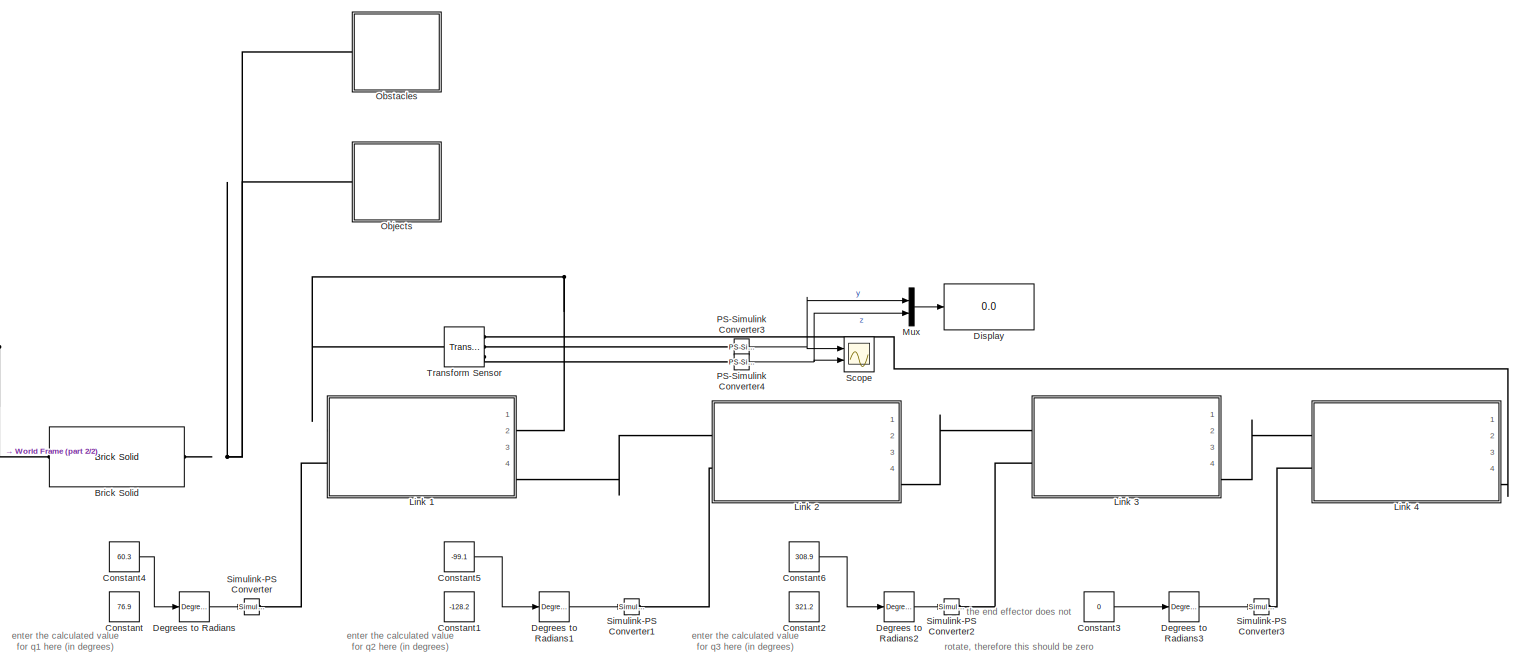
[diagram: root canvas - part 1/2, most of the canvas]
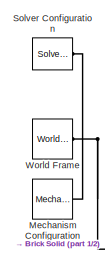
[diagram: root canvas - part 2/2, middle left region]
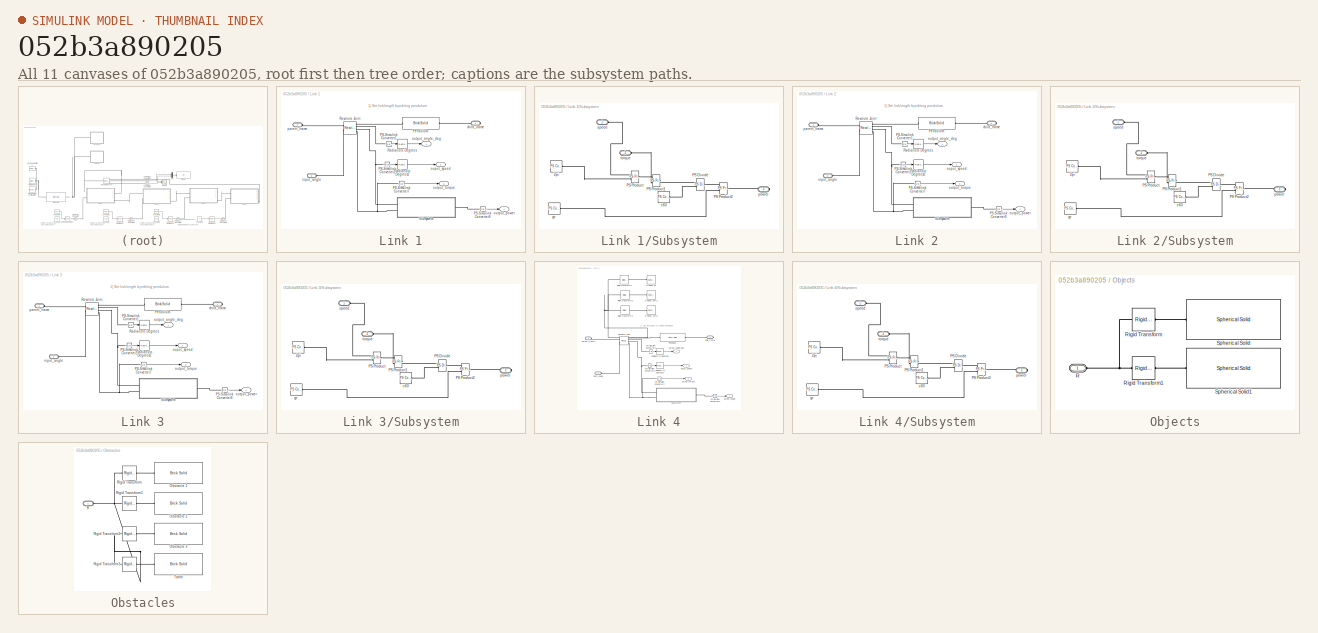
[diagram: thumbnail index - all 11 canvases of the model, root first then tree order]
MODEL slx_052b3a890205
KIND model
CONFIG AbsTol = 1e-3
CONFIG EnableMultiTasking = on
CONFIG FixedStep = auto
CONFIG MaxStep = 0.01
CONFIG MinStep = auto
CONFIG RelTol = 1e-3
CONFIG SampleTimeConstraint = Unconstrained
CONFIG SolverName = ode15s
CONFIG StartTime = 0.0
CONFIG StopTime = 10.0
BLOCK [Reference] Brick Solid  REF=sm_lib/Body Elements/Brick Solid
  NameLocation = top
  Ports = [0, 0, 0, 0, 0, 1, 1]
  SourceBlock = sm_lib/Body Elements/Brick Solid
  SourceProductBaseCode = MS
  SourceType = Brick Solid
BLOCK [Constant] Constant
  Commented = on
  Value = 76.9
BLOCK [Constant] Constant1
  Commented = on
  Value = -128.2
BLOCK [Constant] Constant2
  Commented = on
  Value = 321.2
BLOCK [Constant] Constant3
  Value = 0
BLOCK [Constant] Constant4
  Value = 60.3
BLOCK [Constant] Constant5
  Value = -99.1
BLOCK [Constant] Constant6
  Value = 308.9
BLOCK [Reference] Degrees to Radians  REF=simulink_extras/Transformations/Degrees to
Radians
  Ports = [1, 1]
  SourceBlock = simulink_extras/Transformations/Degrees to\nRadians
  SourceProductBaseCode = SL
  SourceType = DegreesToRadians
BLOCK [Reference] Degrees to Radians1  REF=simulink_extras/Transformations/Degrees to
Radians
  Ports = [1, 1]
  SourceBlock = simulink_extras/Transformations/Degrees to\nRadians
  SourceProductBaseCode = SL
  SourceType = DegreesToRadians
BLOCK [Reference] Degrees to Radians2  REF=simulink_extras/Transformations/Degrees to
Radians
  Ports = [1, 1]
  SourceBlock = simulink_extras/Transformations/Degrees to\nRadians
  SourceProductBaseCode = SL
  SourceType = DegreesToRadians
BLOCK [Reference] Degrees to Radians3  REF=simulink_extras/Transformations/Degrees to
Radians
  Ports = [1, 1]
  SourceBlock = simulink_extras/Transformations/Degrees to\nRadians
  SourceProductBaseCode = SL
  SourceType = DegreesToRadians
BLOCK [Display] Display
  Decimation = 1
  Ports = [1]
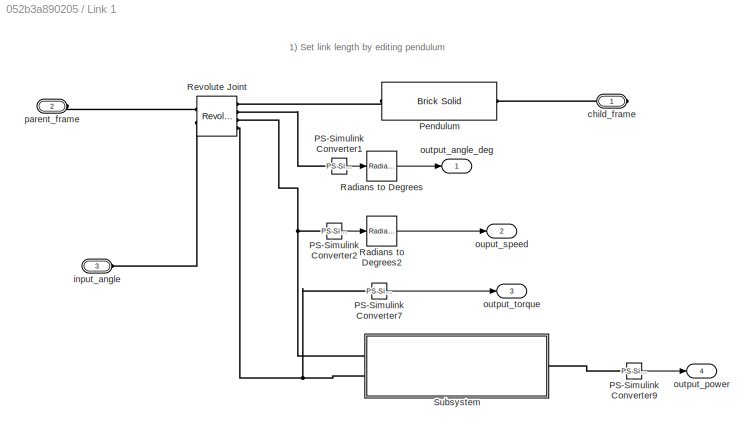
BLOCK [SubSystem] Link 1
  Ports = [0, 4, 0, 0, 0, 2, 1]
  RequestExecContextInheritance = off
BLOCK [Reference] Link 1/PS-Simulink Converter1  REF=nesl_utility/PS-Simulink
Converter
  Ports = [0, 1, 0, 0, 0, 1]
  SourceBlock = nesl_utility/PS-Simulink\nConverter
  SourceProductBaseCode = SS
  SourceType = PS-Simulink\nConverter
BLOCK [Reference] Link 1/PS-Simulink Converter2  REF=nesl_utility/PS-Simulink
Converter
  Ports = [0, 1, 0, 0, 0, 1]
  SourceBlock = nesl_utility/PS-Simulink\nConverter
  SourceProductBaseCode = SS
  SourceType = PS-Simulink\nConverter
BLOCK [Reference] Link 1/PS-Simulink Converter7  REF=nesl_utility/PS-Simulink
Converter
  Ports = [0, 1, 0, 0, 0, 1]
  SourceBlock = nesl_utility/PS-Simulink\nConverter
  SourceProductBaseCode = SS
  SourceType = PS-Simulink\nConverter
BLOCK [Reference] Link 1/PS-Simulink Converter9  REF=nesl_utility/PS-Simulink
Converter
  Ports = [0, 1, 0, 0, 0, 1]
  SourceBlock = nesl_utility/PS-Simulink\nConverter
  SourceProductBaseCode = SS
  SourceType = PS-Simulink\nConverter
BLOCK [Reference] Link 1/Pendulum  REF=sm_lib/Body Elements/Brick Solid
  Ports = [0, 0, 0, 0, 0, 1, 1]
  SourceBlock = sm_lib/Body Elements/Brick Solid
  SourceProductBaseCode = MS
  SourceType = Brick Solid
BLOCK [Reference] Link 1/Radians to Degrees  REF=simulink_extras/Transformations/Radians
to Degrees
  Ports = [1, 1]
  SourceBlock = simulink_extras/Transformations/Radians\nto Degrees
  SourceProductBaseCode = SL
  SourceType = RadiansToDegrees
BLOCK [Reference] Link 1/Radians to Degrees2  REF=simulink_extras/Transformations/Radians
to Degrees
  Ports = [1, 1]
  SourceBlock = simulink_extras/Transformations/Radians\nto Degrees
  SourceProductBaseCode = SL
  SourceType = RadiansToDegrees
BLOCK [Reference] Link 1/Revolute Joint  REF=sm_lib/Joints/Revolute Joint
  Ports = [0, 0, 0, 0, 0, 2, 4]
  SourceBlock = sm_lib/Joints/Revolute Joint
  SourceProductBaseCode = MS
  SourceType = Revolute Joint
BLOCK [SubSystem] Link 1/Subsystem
  Ports = [0, 0, 0, 0, 0, 2, 1]
  RequestExecContextInheritance = off
BLOCK [Reference] Link 1/Subsystem/2pi  REF=fl_lib/Physical Signals/Sources/PS Constant
  Ports = [0, 0, 0, 0, 0, 0, 1]
  SourceBlock = fl_lib/Physical Signals/Sources/PS Constant
  SourceProductBaseCode = SS
  SourceType = PS Constant
BLOCK [Reference] Link 1/Subsystem/PS Divide  REF=fl_lib/Physical Signals/Functions/PS Divide
  Ports = [0, 0, 0, 0, 0, 2, 1]
  SourceBlock = fl_lib/Physical Signals/Functions/PS Divide
  SourceProductBaseCode = SS
  SourceType = PS Divide
BLOCK [Reference] Link 1/Subsystem/PS Product  REF=fl_lib/Physical Signals/Functions/PS Product
  Ports = [0, 0, 0, 0, 0, 2, 1]
  SourceBlock = fl_lib/Physical Signals/Functions/PS Product
  SourceProductBaseCode = SS
  SourceType = PS Product
BLOCK [Reference] Link 1/Subsystem/PS Product1  REF=fl_lib/Physical Signals/Functions/PS Product
  Ports = [0, 0, 0, 0, 0, 2, 1]
  SourceBlock = fl_lib/Physical Signals/Functions/PS Product
  SourceProductBaseCode = SS
  SourceType = PS Product
BLOCK [Reference] Link 1/Subsystem/PS Product2  REF=fl_lib/Physical Signals/Functions/PS Product
  Ports = [0, 0, 0, 0, 0, 2, 1]
  SourceBlock = fl_lib/Physical Signals/Functions/PS Product
  SourceProductBaseCode = SS
  SourceType = PS Product
BLOCK [Reference] Link 1/Subsystem/c60  REF=fl_lib/Physical Signals/Sources/PS Constant
  Ports = [0, 0, 0, 0, 0, 0, 1]
  SourceBlock = fl_lib/Physical Signals/Sources/PS Constant
  SourceProductBaseCode = SS
  SourceType = PS Constant
BLOCK [Reference] Link 1/Subsystem/gr  REF=fl_lib/Physical Signals/Sources/PS Constant
  Ports = [0, 0, 0, 0, 0, 0, 1]
  SourceBlock = fl_lib/Physical Signals/Sources/PS Constant
  SourceProductBaseCode = SS
  SourceType = PS Constant
BLOCK [PMIOPort] Link 1/Subsystem/power
  Port = 3
  Side = Right
BLOCK [PMIOPort] Link 1/Subsystem/speed
  Side = Left
BLOCK [PMIOPort] Link 1/Subsystem/torque
  Port = 2
  Side = Left
BLOCK [PMIOPort] Link 1/child_frame
  Side = Right
BLOCK [PMIOPort] Link 1/input_angle
  Port = 3
  Side = Left
BLOCK [Outport] Link 1/ouput_speed
  Port = 2
BLOCK [Outport] Link 1/output_angle_deg
BLOCK [Outport] Link 1/output_power
  Port = 4
BLOCK [Outport] Link 1/output_torque
  Port = 3
BLOCK [PMIOPort] Link 1/parent_frame
  Port = 2
  Side = Left
BLOCK [SubSystem] Link 2
  Ports = [0, 4, 0, 0, 0, 2, 1]
  RequestExecContextInheritance = off
BLOCK [Reference] Link 2/PS-Simulink Converter1  REF=nesl_utility/PS-Simulink
Converter
  Ports = [0, 1, 0, 0, 0, 1]
  SourceBlock = nesl_utility/PS-Simulink\nConverter
  SourceProductBaseCode = SS
  SourceType = PS-Simulink\nConverter
BLOCK [Reference] Link 2/PS-Simulink Converter2  REF=nesl_utility/PS-Simulink
Converter
  Ports = [0, 1, 0, 0, 0, 1]
  SourceBlock = nesl_utility/PS-Simulink\nConverter
  SourceProductBaseCode = SS
  SourceType = PS-Simulink\nConverter
BLOCK [Reference] Link 2/PS-Simulink Converter7  REF=nesl_utility/PS-Simulink
Converter
  Ports = [0, 1, 0, 0, 0, 1]
  SourceBlock = nesl_utility/PS-Simulink\nConverter
  SourceProductBaseCode = SS
  SourceType = PS-Simulink\nConverter
BLOCK [Reference] Link 2/PS-Simulink Converter9  REF=nesl_utility/PS-Simulink
Converter
  Ports = [0, 1, 0, 0, 0, 1]
  SourceBlock = nesl_utility/PS-Simulink\nConverter
  SourceProductBaseCode = SS
  SourceType = PS-Simulink\nConverter
BLOCK [Reference] Link 2/Pendulum  REF=sm_lib/Body Elements/Brick Solid
  Ports = [0, 0, 0, 0, 0, 1, 1]
  SourceBlock = sm_lib/Body Elements/Brick Solid
  SourceProductBaseCode = MS
  SourceType = Brick Solid
BLOCK [Reference] Link 2/Radians to Degrees  REF=simulink_extras/Transformations/Radians
to Degrees
  Ports = [1, 1]
  SourceBlock = simulink_extras/Transformations/Radians\nto Degrees
  SourceProductBaseCode = SL
  SourceType = RadiansToDegrees
BLOCK [Reference] Link 2/Radians to Degrees2  REF=simulink_extras/Transformations/Radians
to Degrees
  Ports = [1, 1]
  SourceBlock = simulink_extras/Transformations/Radians\nto Degrees
  SourceProductBaseCode = SL
  SourceType = RadiansToDegrees
BLOCK [Reference] Link 2/Revolute Joint  REF=sm_lib/Joints/Revolute Joint
  Ports = [0, 0, 0, 0, 0, 2, 4]
  SourceBlock = sm_lib/Joints/Revolute Joint
  SourceProductBaseCode = MS
  SourceType = Revolute Joint
BLOCK [SubSystem] Link 2/Subsystem
  Ports = [0, 0, 0, 0, 0, 2, 1]
  RequestExecContextInheritance = off
BLOCK [Reference] Link 2/Subsystem/2pi  REF=fl_lib/Physical Signals/Sources/PS Constant
  Ports = [0, 0, 0, 0, 0, 0, 1]
  SourceBlock = fl_lib/Physical Signals/Sources/PS Constant
  SourceProductBaseCode = SS
  SourceType = PS Constant
BLOCK [Reference] Link 2/Subsystem/PS Divide  REF=fl_lib/Physical Signals/Functions/PS Divide
  Ports = [0, 0, 0, 0, 0, 2, 1]
  SourceBlock = fl_lib/Physical Signals/Functions/PS Divide
  SourceProductBaseCode = SS
  SourceType = PS Divide
BLOCK [Reference] Link 2/Subsystem/PS Product  REF=fl_lib/Physical Signals/Functions/PS Product
  Ports = [0, 0, 0, 0, 0, 2, 1]
  SourceBlock = fl_lib/Physical Signals/Functions/PS Product
  SourceProductBaseCode = SS
  SourceType = PS Product
BLOCK [Reference] Link 2/Subsystem/PS Product1  REF=fl_lib/Physical Signals/Functions/PS Product
  Ports = [0, 0, 0, 0, 0, 2, 1]
  SourceBlock = fl_lib/Physical Signals/Functions/PS Product
  SourceProductBaseCode = SS
  SourceType = PS Product
BLOCK [Reference] Link 2/Subsystem/PS Product2  REF=fl_lib/Physical Signals/Functions/PS Product
  Ports = [0, 0, 0, 0, 0, 2, 1]
  SourceBlock = fl_lib/Physical Signals/Functions/PS Product
  SourceProductBaseCode = SS
  SourceType = PS Product
BLOCK [Reference] Link 2/Subsystem/c60  REF=fl_lib/Physical Signals/Sources/PS Constant
  Ports = [0, 0, 0, 0, 0, 0, 1]
  SourceBlock = fl_lib/Physical Signals/Sources/PS Constant
  SourceProductBaseCode = SS
  SourceType = PS Constant
BLOCK [Reference] Link 2/Subsystem/gr  REF=fl_lib/Physical Signals/Sources/PS Constant
  Ports = [0, 0, 0, 0, 0, 0, 1]
  SourceBlock = fl_lib/Physical Signals/Sources/PS Constant
  SourceProductBaseCode = SS
  SourceType = PS Constant
BLOCK [PMIOPort] Link 2/Subsystem/power
  Port = 3
  Side = Right
BLOCK [PMIOPort] Link 2/Subsystem/speed
  Side = Left
BLOCK [PMIOPort] Link 2/Subsystem/torque
  Port = 2
  Side = Left
BLOCK [PMIOPort] Link 2/child_frame
  Side = Right
BLOCK [PMIOPort] Link 2/input_angle
  Port = 3
  Side = Left
BLOCK [Outport] Link 2/ouput_speed
  Port = 2
BLOCK [Outport] Link 2/output_angle_deg
BLOCK [Outport] Link 2/output_power
  Port = 4
BLOCK [Outport] Link 2/output_torque
  Port = 3
BLOCK [PMIOPort] Link 2/parent_frame
  Port = 2
  Side = Left
BLOCK [SubSystem] Link 3
  Ports = [0, 4, 0, 0, 0, 2, 1]
  RequestExecContextInheritance = off
BLOCK [Reference] Link 3/PS-Simulink Converter1  REF=nesl_utility/PS-Simulink
Converter
  Ports = [0, 1, 0, 0, 0, 1]
  SourceBlock = nesl_utility/PS-Simulink\nConverter
  SourceProductBaseCode = SS
  SourceType = PS-Simulink\nConverter
BLOCK [Reference] Link 3/PS-Simulink Converter2  REF=nesl_utility/PS-Simulink
Converter
  Ports = [0, 1, 0, 0, 0, 1]
  SourceBlock = nesl_utility/PS-Simulink\nConverter
  SourceProductBaseCode = SS
  SourceType = PS-Simulink\nConverter
BLOCK [Reference] Link 3/PS-Simulink Converter7  REF=nesl_utility/PS-Simulink
Converter
  Ports = [0, 1, 0, 0, 0, 1]
  SourceBlock = nesl_utility/PS-Simulink\nConverter
  SourceProductBaseCode = SS
  SourceType = PS-Simulink\nConverter
BLOCK [Reference] Link 3/PS-Simulink Converter9  REF=nesl_utility/PS-Simulink
Converter
  Ports = [0, 1, 0, 0, 0, 1]
  SourceBlock = nesl_utility/PS-Simulink\nConverter
  SourceProductBaseCode = SS
  SourceType = PS-Simulink\nConverter
BLOCK [Reference] Link 3/Pendulum  REF=sm_lib/Body Elements/Brick Solid
  Ports = [0, 0, 0, 0, 0, 1, 1]
  SourceBlock = sm_lib/Body Elements/Brick Solid
  SourceProductBaseCode = MS
  SourceType = Brick Solid
BLOCK [Reference] Link 3/Radians to Degrees  REF=simulink_extras/Transformations/Radians
to Degrees
  Ports = [1, 1]
  SourceBlock = simulink_extras/Transformations/Radians\nto Degrees
  SourceProductBaseCode = SL
  SourceType = RadiansToDegrees
BLOCK [Reference] Link 3/Radians to Degrees2  REF=simulink_extras/Transformations/Radians
to Degrees
  Ports = [1, 1]
  SourceBlock = simulink_extras/Transformations/Radians\nto Degrees
  SourceProductBaseCode = SL
  SourceType = RadiansToDegrees
BLOCK [Reference] Link 3/Revolute Joint  REF=sm_lib/Joints/Revolute Joint
  Ports = [0, 0, 0, 0, 0, 2, 4]
  SourceBlock = sm_lib/Joints/Revolute Joint
  SourceProductBaseCode = MS
  SourceType = Revolute Joint
BLOCK [SubSystem] Link 3/Subsystem
  Ports = [0, 0, 0, 0, 0, 2, 1]
  RequestExecContextInheritance = off
BLOCK [Reference] Link 3/Subsystem/2pi  REF=fl_lib/Physical Signals/Sources/PS Constant
  Ports = [0, 0, 0, 0, 0, 0, 1]
  SourceBlock = fl_lib/Physical Signals/Sources/PS Constant
  SourceProductBaseCode = SS
  SourceType = PS Constant
BLOCK [Reference] Link 3/Subsystem/PS Divide  REF=fl_lib/Physical Signals/Functions/PS Divide
  Ports = [0, 0, 0, 0, 0, 2, 1]
  SourceBlock = fl_lib/Physical Signals/Functions/PS Divide
  SourceProductBaseCode = SS
  SourceType = PS Divide
BLOCK [Reference] Link 3/Subsystem/PS Product  REF=fl_lib/Physical Signals/Functions/PS Product
  Ports = [0, 0, 0, 0, 0, 2, 1]
  SourceBlock = fl_lib/Physical Signals/Functions/PS Product
  SourceProductBaseCode = SS
  SourceType = PS Product
BLOCK [Reference] Link 3/Subsystem/PS Product1  REF=fl_lib/Physical Signals/Functions/PS Product
  Ports = [0, 0, 0, 0, 0, 2, 1]
  SourceBlock = fl_lib/Physical Signals/Functions/PS Product
  SourceProductBaseCode = SS
  SourceType = PS Product
BLOCK [Reference] Link 3/Subsystem/PS Product2  REF=fl_lib/Physical Signals/Functions/PS Product
  Ports = [0, 0, 0, 0, 0, 2, 1]
  SourceBlock = fl_lib/Physical Signals/Functions/PS Product
  SourceProductBaseCode = SS
  SourceType = PS Product
BLOCK [Reference] Link 3/Subsystem/c60  REF=fl_lib/Physical Signals/Sources/PS Constant
  Ports = [0, 0, 0, 0, 0, 0, 1]
  SourceBlock = fl_lib/Physical Signals/Sources/PS Constant
  SourceProductBaseCode = SS
  SourceType = PS Constant
BLOCK [Reference] Link 3/Subsystem/gr  REF=fl_lib/Physical Signals/Sources/PS Constant
  Ports = [0, 0, 0, 0, 0, 0, 1]
  SourceBlock = fl_lib/Physical Signals/Sources/PS Constant
  SourceProductBaseCode = SS
  SourceType = PS Constant
BLOCK [PMIOPort] Link 3/Subsystem/power
  Port = 3
  Side = Right
BLOCK [PMIOPort] Link 3/Subsystem/speed
  Side = Left
BLOCK [PMIOPort] Link 3/Subsystem/torque
  Port = 2
  Side = Left
BLOCK [PMIOPort] Link 3/child_frame
  Side = Right
BLOCK [PMIOPort] Link 3/input_angle
  Port = 3
  Side = Left
BLOCK [Outport] Link 3/ouput_speed
  Port = 2
BLOCK [Outport] Link 3/output_angle_deg
BLOCK [Outport] Link 3/output_power
  Port = 4
BLOCK [Outport] Link 3/output_torque
  Port = 3
BLOCK [PMIOPort] Link 3/parent_frame
  Port = 2
  Side = Left
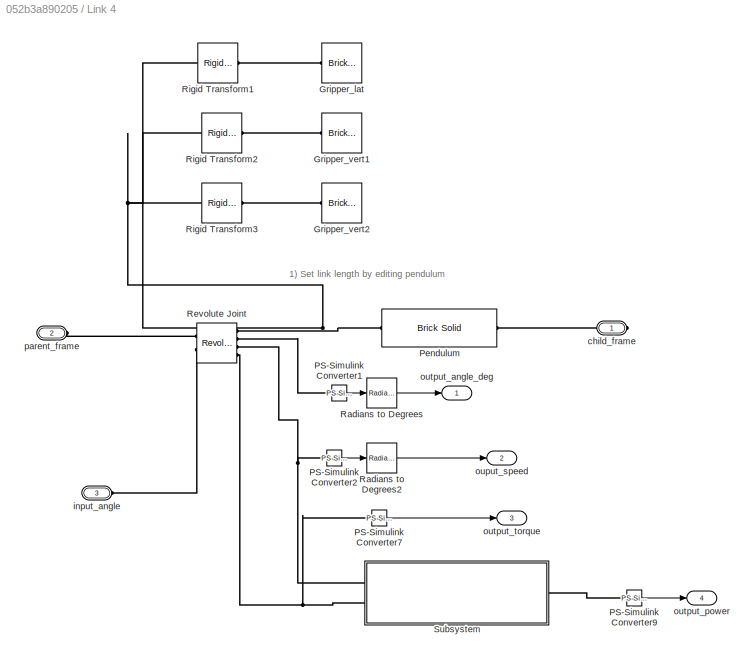
BLOCK [SubSystem] Link 4
  Ports = [0, 4, 0, 0, 0, 2, 1]
  RequestExecContextInheritance = off
BLOCK [Reference] Link 4/Gripper_lat  REF=sm_lib/Body Elements/Brick Solid
  NameLocation = top
  Ports = [0, 0, 0, 0, 0, 0, 1]
  SourceBlock = sm_lib/Body Elements/Brick Solid
  SourceProductBaseCode = MS
  SourceType = Brick Solid
BLOCK [Reference] Link 4/Gripper_vert1  REF=sm_lib/Body Elements/Brick Solid
  NameLocation = top
  Ports = [0, 0, 0, 0, 0, 0, 1]
  SourceBlock = sm_lib/Body Elements/Brick Solid
  SourceProductBaseCode = MS
  SourceType = Brick Solid
BLOCK [Reference] Link 4/Gripper_vert2  REF=sm_lib/Body Elements/Brick Solid
  NameLocation = top
  Ports = [0, 0, 0, 0, 0, 0, 1]
  SourceBlock = sm_lib/Body Elements/Brick Solid
  SourceProductBaseCode = MS
  SourceType = Brick Solid
BLOCK [Reference] Link 4/PS-Simulink Converter1  REF=nesl_utility/PS-Simulink
Converter
  Ports = [0, 1, 0, 0, 0, 1]
  SourceBlock = nesl_utility/PS-Simulink\nConverter
  SourceProductBaseCode = SS
  SourceType = PS-Simulink\nConverter
BLOCK [Reference] Link 4/PS-Simulink Converter2  REF=nesl_utility/PS-Simulink
Converter
  Ports = [0, 1, 0, 0, 0, 1]
  SourceBlock = nesl_utility/PS-Simulink\nConverter
  SourceProductBaseCode = SS
  SourceType = PS-Simulink\nConverter
BLOCK [Reference] Link 4/PS-Simulink Converter7  REF=nesl_utility/PS-Simulink
Converter
  Ports = [0, 1, 0, 0, 0, 1]
  SourceBlock = nesl_utility/PS-Simulink\nConverter
  SourceProductBaseCode = SS
  SourceType = PS-Simulink\nConverter
BLOCK [Reference] Link 4/PS-Simulink Converter9  REF=nesl_utility/PS-Simulink
Converter
  Ports = [0, 1, 0, 0, 0, 1]
  SourceBlock = nesl_utility/PS-Simulink\nConverter
  SourceProductBaseCode = SS
  SourceType = PS-Simulink\nConverter
BLOCK [Reference] Link 4/Pendulum  REF=sm_lib/Body Elements/Brick Solid
  Ports = [0, 0, 0, 0, 0, 1, 1]
  SourceBlock = sm_lib/Body Elements/Brick Solid
  SourceProductBaseCode = MS
  SourceType = Brick Solid
BLOCK [Reference] Link 4/Radians to Degrees  REF=simulink_extras/Transformations/Radians
to Degrees
  Ports = [1, 1]
  SourceBlock = simulink_extras/Transformations/Radians\nto Degrees
  SourceProductBaseCode = SL
  SourceType = RadiansToDegrees
BLOCK [Reference] Link 4/Radians to Degrees2  REF=simulink_extras/Transformations/Radians
to Degrees
  Ports = [1, 1]
  SourceBlock = simulink_extras/Transformations/Radians\nto Degrees
  SourceProductBaseCode = SL
  SourceType = RadiansToDegrees
BLOCK [Reference] Link 4/Revolute Joint  REF=sm_lib/Joints/Revolute Joint
  Ports = [0, 0, 0, 0, 0, 2, 4]
  SourceBlock = sm_lib/Joints/Revolute Joint
  SourceProductBaseCode = MS
  SourceType = Revolute Joint
BLOCK [Reference] Link 4/Rigid Transform1  REF=sm_lib/Frames and
Transforms/Rigid
Transform
  Ports = [0, 0, 0, 0, 0, 1, 1]
  SourceBlock = sm_lib/Frames and\nTransforms/Rigid\nTransform
  SourceProductBaseCode = MS
  SourceType = Rigid\nTransform
BLOCK [Reference] Link 4/Rigid Transform2  REF=sm_lib/Frames and
Transforms/Rigid
Transform
  Ports = [0, 0, 0, 0, 0, 1, 1]
  SourceBlock = sm_lib/Frames and\nTransforms/Rigid\nTransform
  SourceProductBaseCode = MS
  SourceType = Rigid\nTransform
BLOCK [Reference] Link 4/Rigid Transform3  REF=sm_lib/Frames and
Transforms/Rigid
Transform
  Ports = [0, 0, 0, 0, 0, 1, 1]
  SourceBlock = sm_lib/Frames and\nTransforms/Rigid\nTransform
  SourceProductBaseCode = MS
  SourceType = Rigid\nTransform
BLOCK [SubSystem] Link 4/Subsystem
  Ports = [0, 0, 0, 0, 0, 2, 1]
  RequestExecContextInheritance = off
BLOCK [Reference] Link 4/Subsystem/2pi  REF=fl_lib/Physical Signals/Sources/PS Constant
  Ports = [0, 0, 0, 0, 0, 0, 1]
  SourceBlock = fl_lib/Physical Signals/Sources/PS Constant
  SourceProductBaseCode = SS
  SourceType = PS Constant
BLOCK [Reference] Link 4/Subsystem/PS Divide  REF=fl_lib/Physical Signals/Functions/PS Divide
  Ports = [0, 0, 0, 0, 0, 2, 1]
  SourceBlock = fl_lib/Physical Signals/Functions/PS Divide
  SourceProductBaseCode = SS
  SourceType = PS Divide
BLOCK [Reference] Link 4/Subsystem/PS Product  REF=fl_lib/Physical Signals/Functions/PS Product
  Ports = [0, 0, 0, 0, 0, 2, 1]
  SourceBlock = fl_lib/Physical Signals/Functions/PS Product
  SourceProductBaseCode = SS
  SourceType = PS Product
BLOCK [Reference] Link 4/Subsystem/PS Product1  REF=fl_lib/Physical Signals/Functions/PS Product
  Ports = [0, 0, 0, 0, 0, 2, 1]
  SourceBlock = fl_lib/Physical Signals/Functions/PS Product
  SourceProductBaseCode = SS
  SourceType = PS Product
BLOCK [Reference] Link 4/Subsystem/PS Product2  REF=fl_lib/Physical Signals/Functions/PS Product
  Ports = [0, 0, 0, 0, 0, 2, 1]
  SourceBlock = fl_lib/Physical Signals/Functions/PS Product
  SourceProductBaseCode = SS
  SourceType = PS Product
BLOCK [Reference] Link 4/Subsystem/c60  REF=fl_lib/Physical Signals/Sources/PS Constant
  Ports = [0, 0, 0, 0, 0, 0, 1]
  SourceBlock = fl_lib/Physical Signals/Sources/PS Constant
  SourceProductBaseCode = SS
  SourceType = PS Constant
BLOCK [Reference] Link 4/Subsystem/gr  REF=fl_lib/Physical Signals/Sources/PS Constant
  Ports = [0, 0, 0, 0, 0, 0, 1]
  SourceBlock = fl_lib/Physical Signals/Sources/PS Constant
  SourceProductBaseCode = SS
  SourceType = PS Constant
BLOCK [PMIOPort] Link 4/Subsystem/power
  Port = 3
  Side = Right
BLOCK [PMIOPort] Link 4/Subsystem/speed
  Side = Left
BLOCK [PMIOPort] Link 4/Subsystem/torque
  Port = 2
  Side = Left
BLOCK [PMIOPort] Link 4/child_frame
  Side = Right
BLOCK [PMIOPort] Link 4/input_angle
  Port = 3
  Side = Left
BLOCK [Outport] Link 4/ouput_speed
  Port = 2
BLOCK [Outport] Link 4/output_angle_deg
BLOCK [Outport] Link 4/output_power
  Port = 4
BLOCK [Outport] Link 4/output_torque
  Port = 3
BLOCK [PMIOPort] Link 4/parent_frame
  Port = 2
  Side = Left
BLOCK [Reference] Mechanism Configuration  REF=sm_lib/Utilities/Mechanism
Configuration
  Ports = [0, 0, 0, 0, 0, 0, 1]
  SourceBlock = sm_lib/Utilities/Mechanism\nConfiguration
  SourceProductBaseCode = MS
  SourceType = Mechanism\nConfiguration
BLOCK [Mux] Mux
  DisplayOption = bar
  Inputs = 2
  Ports = [2, 1]
BLOCK [SubSystem] Objects
  Ports = [0, 0, 0, 0, 0, 1]
  RequestExecContextInheritance = off
BLOCK [PMIOPort] Objects/R
  Side = Left
BLOCK [Reference] Objects/Rigid Transform  REF=sm_lib/Frames and
Transforms/Rigid
Transform
  Ports = [0, 0, 0, 0, 0, 1, 1]
  SourceBlock = sm_lib/Frames and\nTransforms/Rigid\nTransform
  SourceProductBaseCode = MS
  SourceType = Rigid\nTransform
BLOCK [Reference] Objects/Rigid Transform1  REF=sm_lib/Frames and
Transforms/Rigid
Transform
  Ports = [0, 0, 0, 0, 0, 1, 1]
  SourceBlock = sm_lib/Frames and\nTransforms/Rigid\nTransform
  SourceProductBaseCode = MS
  SourceType = Rigid\nTransform
BLOCK [Reference] Objects/Spherical Solid  REF=sm_lib/Body Elements/Spherical Solid
  NameLocation = top
  Ports = [0, 0, 0, 0, 0, 1, 1]
  SourceBlock = sm_lib/Body Elements/Spherical Solid
  SourceProductBaseCode = MS
  SourceType = Spherical Solid
BLOCK [Reference] Objects/Spherical Solid1  REF=sm_lib/Body Elements/Spherical Solid
  NameLocation = top
  Ports = [0, 0, 0, 0, 0, 1, 1]
  SourceBlock = sm_lib/Body Elements/Spherical Solid
  SourceProductBaseCode = MS
  SourceType = Spherical Solid
BLOCK [SubSystem] Obstacles
  Ports = [0, 0, 0, 0, 0, 1]
  RequestExecContextInheritance = off
BLOCK [Reference] Obstacles/Obstacle 1  REF=sm_lib/Body Elements/Brick Solid
  NameLocation = top
  Ports = [0, 0, 0, 0, 0, 1, 1]
  SourceBlock = sm_lib/Body Elements/Brick Solid
  SourceProductBaseCode = MS
  SourceType = Brick Solid
BLOCK [Reference] Obstacles/Obstacle 2  REF=sm_lib/Body Elements/Brick Solid
  NameLocation = top
  Ports = [0, 0, 0, 0, 0, 1, 1]
  SourceBlock = sm_lib/Body Elements/Brick Solid
  SourceProductBaseCode = MS
  SourceType = Brick Solid
BLOCK [Reference] Obstacles/Obstacle 3  REF=sm_lib/Body Elements/Brick Solid
  NameLocation = top
  Ports = [0, 0, 0, 0, 0, 1, 1]
  SourceBlock = sm_lib/Body Elements/Brick Solid
  SourceProductBaseCode = MS
  SourceType = Brick Solid
BLOCK [PMIOPort] Obstacles/R
  Side = Left
BLOCK [Reference] Obstacles/Rigid Transform  REF=sm_lib/Frames and
Transforms/Rigid
Transform
  Ports = [0, 0, 0, 0, 0, 1, 1]
  SourceBlock = sm_lib/Frames and\nTransforms/Rigid\nTransform
  SourceProductBaseCode = MS
  SourceType = Rigid\nTransform
BLOCK [Reference] Obstacles/Rigid Transform1  REF=sm_lib/Frames and
Transforms/Rigid
Transform
  Ports = [0, 0, 0, 0, 0, 1, 1]
  SourceBlock = sm_lib/Frames and\nTransforms/Rigid\nTransform
  SourceProductBaseCode = MS
  SourceType = Rigid\nTransform
BLOCK [Reference] Obstacles/Rigid Transform2  REF=sm_lib/Frames and
Transforms/Rigid
Transform
  Ports = [0, 0, 0, 0, 0, 1, 1]
  SourceBlock = sm_lib/Frames and\nTransforms/Rigid\nTransform
  SourceProductBaseCode = MS
  SourceType = Rigid\nTransform
BLOCK [Reference] Obstacles/Rigid Transform3  REF=sm_lib/Frames and
Transforms/Rigid
Transform
  Ports = [0, 0, 0, 0, 0, 1, 1]
  SourceBlock = sm_lib/Frames and\nTransforms/Rigid\nTransform
  SourceProductBaseCode = MS
  SourceType = Rigid\nTransform
BLOCK [Reference] Obstacles/Table  REF=sm_lib/Body Elements/Brick Solid
  NameLocation = top
  Ports = [0, 0, 0, 0, 0, 1, 1]
  SourceBlock = sm_lib/Body Elements/Brick Solid
  SourceProductBaseCode = MS
  SourceType = Brick Solid
BLOCK [Reference] PS-Simulink Converter3  REF=nesl_utility/PS-Simulink
Converter
  Ports = [0, 1, 0, 0, 0, 1]
  SourceBlock = nesl_utility/PS-Simulink\nConverter
  SourceProductBaseCode = SS
  SourceType = PS-Simulink\nConverter
BLOCK [Reference] PS-Simulink Converter4  REF=nesl_utility/PS-Simulink
Converter
  Ports = [0, 1, 0, 0, 0, 1]
  SourceBlock = nesl_utility/PS-Simulink\nConverter
  SourceProductBaseCode = SS
  SourceType = PS-Simulink\nConverter
BLOCK [Scope] Scope
  Floating = off
  NameLocation = top
  NumInputPorts = 2
  Ports = [2]
  ScopeSpecificationString = Simulink.scopes.TimeScopeBlockCfg('CurrentConfiguration', extmgr.ConfigurationSet(extmgr.Configuration('Core','General UI',true),extmgr.Configuration('Core','Source UI',true),extmgr.Configuration('Sources','WiredSimulink',true,'DataLoggingVariableName','ScopeData1'),extmgr.Configuration('Visuals','Time Domain',true,'SerializedDisplays',{struct('MinYLimReal','-1.42842','MaxYLimReal','0.85574','YLab...<+1362ch>
BLOCK [Reference] Simulink-PS Converter  REF=nesl_utility/Simulink-PS
Converter
  Ports = [1, 0, 0, 0, 0, 0, 1]
  SourceBlock = nesl_utility/Simulink-PS\nConverter
  SourceProductBaseCode = SS
  SourceType = Simulink-PS\nConverter
BLOCK [Reference] Simulink-PS Converter1  REF=nesl_utility/Simulink-PS
Converter
  Ports = [1, 0, 0, 0, 0, 0, 1]
  SourceBlock = nesl_utility/Simulink-PS\nConverter
  SourceProductBaseCode = SS
  SourceType = Simulink-PS\nConverter
BLOCK [Reference] Simulink-PS Converter2  REF=nesl_utility/Simulink-PS
Converter
  Ports = [1, 0, 0, 0, 0, 0, 1]
  SourceBlock = nesl_utility/Simulink-PS\nConverter
  SourceProductBaseCode = SS
  SourceType = Simulink-PS\nConverter
BLOCK [Reference] Simulink-PS Converter3  REF=nesl_utility/Simulink-PS
Converter
  Ports = [1, 0, 0, 0, 0, 0, 1]
  SourceBlock = nesl_utility/Simulink-PS\nConverter
  SourceProductBaseCode = SS
  SourceType = Simulink-PS\nConverter
BLOCK [Reference] Solver Configuration  REF=nesl_utility/Solver
Configuration
  Ports = [0, 0, 0, 0, 0, 0, 1]
  SourceBlock = nesl_utility/Solver\nConfiguration
  SourceProductName = Utilities
  SourceType = Solver\nConfiguration
BLOCK [Reference] Transform Sensor  REF=sm_lib/Frames and
Transforms/Transform
Sensor
  Ports = [0, 0, 0, 0, 0, 1, 3]
  SourceBlock = sm_lib/Frames and\nTransforms/Transform\nSensor
  SourceProductBaseCode = MS
  SourceType = Transform\nSensor
BLOCK [Reference] World Frame  REF=sm_lib/Frames and
Transforms/World Frame
  Ports = [0, 0, 0, 0, 0, 0, 1]
  SourceBlock = sm_lib/Frames and\nTransforms/World Frame
  SourceProductName = Multibody
  SourceType = World Frame
ANNOTATION (root): the end effector does not rotate, therefore this should be zero
ANNOTATION (root): enter the calculated value for q2 here (in degrees)
ANNOTATION (root): enter the calculated value for q3 here (in degrees)
ANNOTATION (root): enter the calculated value for q1 here (in degrees)
ANNOTATION Link 1: 1) Set link length by editing pendulum
ANNOTATION Link 2: 1) Set link length by editing pendulum
ANNOTATION Link 3: 1) Set link length by editing pendulum
ANNOTATION Link 4: 1) Set link length by editing pendulum
LINE Constant3:1 -> Degrees to Radians3:1
LINE Constant4:1 -> Degrees to Radians:1
LINE Constant5:1 -> Degrees to Radians1:1
LINE Constant6:1 -> Degrees to Radians2:1
LINE Degrees to Radians1:1 -> Simulink-PS Converter1:1
LINE Degrees to Radians2:1 -> Simulink-PS Converter2:1
LINE Degrees to Radians3:1 -> Simulink-PS Converter3:1
LINE Degrees to Radians:1 -> Simulink-PS Converter:1
LINE Link 1/PS-Simulink Converter1:1 -> Link 1/Radians to Degrees:1
LINE Link 1/PS-Simulink Converter2:1 -> Link 1/Radians to Degrees2:1
LINE Link 1/PS-Simulink Converter7:1 -> Link 1/output_torque:1
LINE Link 1/PS-Simulink Converter9:1 -> Link 1/output_power:1
LINE Link 1/Radians to Degrees2:1 -> Link 1/ouput_speed:1
LINE Link 1/Radians to Degrees:1 -> Link 1/output_angle_deg:1
LINE Link 2/PS-Simulink Converter1:1 -> Link 2/Radians to Degrees:1
LINE Link 2/PS-Simulink Converter2:1 -> Link 2/Radians to Degrees2:1
LINE Link 2/PS-Simulink Converter7:1 -> Link 2/output_torque:1
LINE Link 2/PS-Simulink Converter9:1 -> Link 2/output_power:1
LINE Link 2/Radians to Degrees2:1 -> Link 2/ouput_speed:1
LINE Link 2/Radians to Degrees:1 -> Link 2/output_angle_deg:1
LINE Link 3/PS-Simulink Converter1:1 -> Link 3/Radians to Degrees:1
LINE Link 3/PS-Simulink Converter2:1 -> Link 3/Radians to Degrees2:1
LINE Link 3/PS-Simulink Converter7:1 -> Link 3/output_torque:1
LINE Link 3/PS-Simulink Converter9:1 -> Link 3/output_power:1
LINE Link 3/Radians to Degrees2:1 -> Link 3/ouput_speed:1
LINE Link 3/Radians to Degrees:1 -> Link 3/output_angle_deg:1
LINE Link 4/PS-Simulink Converter1:1 -> Link 4/Radians to Degrees:1
LINE Link 4/PS-Simulink Converter2:1 -> Link 4/Radians to Degrees2:1
LINE Link 4/PS-Simulink Converter7:1 -> Link 4/output_torque:1
LINE Link 4/PS-Simulink Converter9:1 -> Link 4/output_power:1
LINE Link 4/Radians to Degrees2:1 -> Link 4/ouput_speed:1
LINE Link 4/Radians to Degrees:1 -> Link 4/output_angle_deg:1
LINE Mux:1 -> Display:1
NET PS-Simulink Converter3:1 -> Mux:1, Scope:1
NET PS-Simulink Converter4:1 -> Mux:2, Scope:2
PNET net1: Brick Solid:LConn1 -- Link 1:LConn1 -- Objects:LConn1 -- Obstacles:LConn1 -- Transform Sensor:LConn1
PNET net2: Brick Solid:RConn1 -- Mechanism Configuration:RConn1 -- Solver Configuration:RConn1 -- World Frame:RConn1
PLINE Link 1/PS-Simulink Converter1:LConn1 -- Link 1/Revolute Joint:RConn2
PNET net3: Link 1/PS-Simulink Converter2:LConn1 -- Link 1/Revolute Joint:RConn3 -- Link 1/Subsystem:LConn1
PNET net4: Link 1/PS-Simulink Converter7:LConn1 -- Link 1/Revolute Joint:RConn4 -- Link 1/Subsystem:LConn2
PLINE Link 1/PS-Simulink Converter9:LConn1 -- Link 1/Subsystem:RConn1
PLINE Link 1/Pendulum:LConn1 -- Link 1/Revolute Joint:RConn1
PLINE Link 1/Pendulum:RConn1 -- Link 1/child_frame:RConn1
PLINE Link 1/Revolute Joint:LConn1 -- Link 1/parent_frame:RConn1
PLINE Link 1/Revolute Joint:LConn2 -- Link 1/input_angle:RConn1
PLINE Link 1/Subsystem/2pi:RConn1 -- Link 1/Subsystem/PS Product:LConn2
PLINE Link 1/Subsystem/PS Divide:LConn1 -- Link 1/Subsystem/PS Product1:RConn1
PLINE Link 1/Subsystem/PS Divide:LConn2 -- Link 1/Subsystem/c60:RConn1
PLINE Link 1/Subsystem/PS Divide:RConn1 -- Link 1/Subsystem/PS Product2:LConn1
PLINE Link 1/Subsystem/PS Product1:LConn1 -- Link 1/Subsystem/PS Product:RConn1
PLINE Link 1/Subsystem/PS Product1:LConn2 -- Link 1/Subsystem/torque:RConn1
PLINE Link 1/Subsystem/PS Product2:LConn2 -- Link 1/Subsystem/gr:RConn1
PLINE Link 1/Subsystem/PS Product2:RConn1 -- Link 1/Subsystem/power:RConn1
PLINE Link 1/Subsystem/PS Product:LConn1 -- Link 1/Subsystem/speed:RConn1
PLINE Link 1:LConn2 -- Simulink-PS Converter:RConn1
PLINE Link 1:RConn1 -- Link 2:LConn1
PLINE Link 2/PS-Simulink Converter1:LConn1 -- Link 2/Revolute Joint:RConn2
PNET net5: Link 2/PS-Simulink Converter2:LConn1 -- Link 2/Revolute Joint:RConn3 -- Link 2/Subsystem:LConn1
PNET net6: Link 2/PS-Simulink Converter7:LConn1 -- Link 2/Revolute Joint:RConn4 -- Link 2/Subsystem:LConn2
PLINE Link 2/PS-Simulink Converter9:LConn1 -- Link 2/Subsystem:RConn1
PLINE Link 2/Pendulum:LConn1 -- Link 2/Revolute Joint:RConn1
PLINE Link 2/Pendulum:RConn1 -- Link 2/child_frame:RConn1
PLINE Link 2/Revolute Joint:LConn1 -- Link 2/parent_frame:RConn1
PLINE Link 2/Revolute Joint:LConn2 -- Link 2/input_angle:RConn1
PLINE Link 2/Subsystem/2pi:RConn1 -- Link 2/Subsystem/PS Product:LConn2
PLINE Link 2/Subsystem/PS Divide:LConn1 -- Link 2/Subsystem/PS Product1:RConn1
PLINE Link 2/Subsystem/PS Divide:LConn2 -- Link 2/Subsystem/c60:RConn1
PLINE Link 2/Subsystem/PS Divide:RConn1 -- Link 2/Subsystem/PS Product2:LConn1
PLINE Link 2/Subsystem/PS Product1:LConn1 -- Link 2/Subsystem/PS Product:RConn1
PLINE Link 2/Subsystem/PS Product1:LConn2 -- Link 2/Subsystem/torque:RConn1
PLINE Link 2/Subsystem/PS Product2:LConn2 -- Link 2/Subsystem/gr:RConn1
PLINE Link 2/Subsystem/PS Product2:RConn1 -- Link 2/Subsystem/power:RConn1
PLINE Link 2/Subsystem/PS Product:LConn1 -- Link 2/Subsystem/speed:RConn1
PLINE Link 2:LConn2 -- Simulink-PS Converter1:RConn1
PLINE Link 2:RConn1 -- Link 3:LConn1
PLINE Link 3/PS-Simulink Converter1:LConn1 -- Link 3/Revolute Joint:RConn2
PNET net7: Link 3/PS-Simulink Converter2:LConn1 -- Link 3/Revolute Joint:RConn3 -- Link 3/Subsystem:LConn1
PNET net8: Link 3/PS-Simulink Converter7:LConn1 -- Link 3/Revolute Joint:RConn4 -- Link 3/Subsystem:LConn2
PLINE Link 3/PS-Simulink Converter9:LConn1 -- Link 3/Subsystem:RConn1
PLINE Link 3/Pendulum:LConn1 -- Link 3/Revolute Joint:RConn1
PLINE Link 3/Pendulum:RConn1 -- Link 3/child_frame:RConn1
PLINE Link 3/Revolute Joint:LConn1 -- Link 3/parent_frame:RConn1
PLINE Link 3/Revolute Joint:LConn2 -- Link 3/input_angle:RConn1
PLINE Link 3/Subsystem/2pi:RConn1 -- Link 3/Subsystem/PS Product:LConn2
PLINE Link 3/Subsystem/PS Divide:LConn1 -- Link 3/Subsystem/PS Product1:RConn1
PLINE Link 3/Subsystem/PS Divide:LConn2 -- Link 3/Subsystem/c60:RConn1
PLINE Link 3/Subsystem/PS Divide:RConn1 -- Link 3/Subsystem/PS Product2:LConn1
PLINE Link 3/Subsystem/PS Product1:LConn1 -- Link 3/Subsystem/PS Product:RConn1
PLINE Link 3/Subsystem/PS Product1:LConn2 -- Link 3/Subsystem/torque:RConn1
PLINE Link 3/Subsystem/PS Product2:LConn2 -- Link 3/Subsystem/gr:RConn1
PLINE Link 3/Subsystem/PS Product2:RConn1 -- Link 3/Subsystem/power:RConn1
PLINE Link 3/Subsystem/PS Product:LConn1 -- Link 3/Subsystem/speed:RConn1
PLINE Link 3:LConn2 -- Simulink-PS Converter2:RConn1
PLINE Link 3:RConn1 -- Link 4:LConn1
PLINE Link 4/Gripper_lat:RConn1 -- Link 4/Rigid Transform1:RConn1
PLINE Link 4/Gripper_vert1:RConn1 -- Link 4/Rigid Transform2:RConn1
PLINE Link 4/Gripper_vert2:RConn1 -- Link 4/Rigid Transform3:RConn1
PLINE Link 4/PS-Simulink Converter1:LConn1 -- Link 4/Revolute Joint:RConn2
PNET net9: Link 4/PS-Simulink Converter2:LConn1 -- Link 4/Revolute Joint:RConn3 -- Link 4/Subsystem:LConn1
PNET net10: Link 4/PS-Simulink Converter7:LConn1 -- Link 4/Revolute Joint:RConn4 -- Link 4/Subsystem:LConn2
PLINE Link 4/PS-Simulink Converter9:LConn1 -- Link 4/Subsystem:RConn1
PNET net11: Link 4/Pendulum:LConn1 -- Link 4/Revolute Joint:RConn1 -- Link 4/Rigid Transform1:LConn1 -- Link 4/Rigid Transform2:LConn1 -- Link 4/Rigid Transform3:LConn1
PLINE Link 4/Pendulum:RConn1 -- Link 4/child_frame:RConn1
PLINE Link 4/Revolute Joint:LConn1 -- Link 4/parent_frame:RConn1
PLINE Link 4/Revolute Joint:LConn2 -- Link 4/input_angle:RConn1
PLINE Link 4/Subsystem/2pi:RConn1 -- Link 4/Subsystem/PS Product:LConn2
PLINE Link 4/Subsystem/PS Divide:LConn1 -- Link 4/Subsystem/PS Product1:RConn1
PLINE Link 4/Subsystem/PS Divide:LConn2 -- Link 4/Subsystem/c60:RConn1
PLINE Link 4/Subsystem/PS Divide:RConn1 -- Link 4/Subsystem/PS Product2:LConn1
PLINE Link 4/Subsystem/PS Product1:LConn1 -- Link 4/Subsystem/PS Product:RConn1
PLINE Link 4/Subsystem/PS Product1:LConn2 -- Link 4/Subsystem/torque:RConn1
PLINE Link 4/Subsystem/PS Product2:LConn2 -- Link 4/Subsystem/gr:RConn1
PLINE Link 4/Subsystem/PS Product2:RConn1 -- Link 4/Subsystem/power:RConn1
PLINE Link 4/Subsystem/PS Product:LConn1 -- Link 4/Subsystem/speed:RConn1
PLINE Link 4:LConn2 -- Simulink-PS Converter3:RConn1
PLINE Link 4:RConn1 -- Transform Sensor:RConn1
PNET net12: Objects/R:RConn1 -- Objects/Rigid Transform1:LConn1 -- Objects/Rigid Transform:LConn1
PLINE Objects/Rigid Transform1:RConn1 -- Objects/Spherical Solid1:RConn1
PLINE Objects/Rigid Transform:RConn1 -- Objects/Spherical Solid:RConn1
PLINE Obstacles/Obstacle 1:RConn1 -- Obstacles/Rigid Transform:RConn1
PLINE Obstacles/Obstacle 2:RConn1 -- Obstacles/Rigid Transform1:RConn1
PLINE Obstacles/Obstacle 3:RConn1 -- Obstacles/Rigid Transform2:RConn1
PNET net13: Obstacles/R:RConn1 -- Obstacles/Rigid Transform1:LConn1 -- Obstacles/Rigid Transform2:LConn1 -- Obstacles/Rigid Transform3:LConn1 -- Obstacles/Rigid Transform:LConn1
PLINE Obstacles/Rigid Transform3:RConn1 -- Obstacles/Table:RConn1
PLINE PS-Simulink Converter3:LConn1 -- Transform Sensor:RConn2
PLINE PS-Simulink Converter4:LConn1 -- Transform Sensor:RConn3
note: NET lines group one-source signal fan-out (src -> all destinations, sorted); 1:1 wires keep LINE; PNET lines group multi-terminal physical nets as a canonical sorted terminal list (undirected conserving connections); 2-terminal nets keep the pairwise PLINE form
